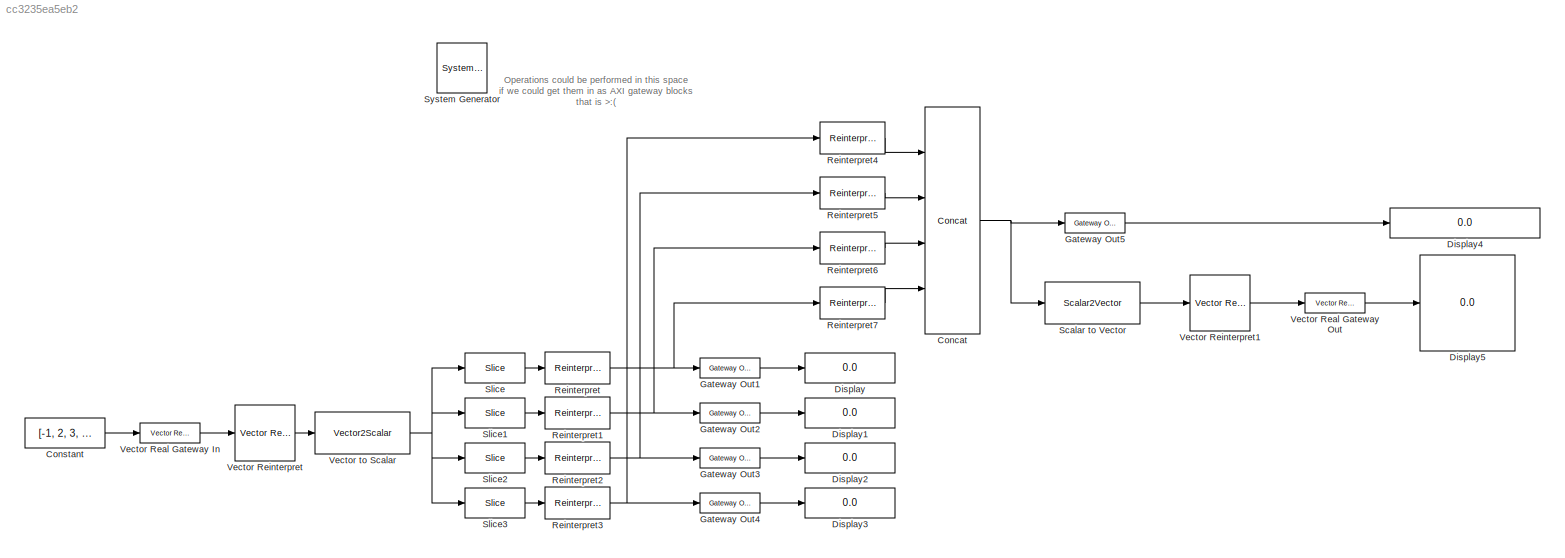
MODEL slx_cc3235ea5eb2
KIND model
CONFIG AbsTol = auto
CONFIG EnableMultiTasking = off
CONFIG FixedStep = auto
CONFIG MaxStep = auto
CONFIG MinStep = auto
CONFIG RelTol = 1e-3
CONFIG SampleTimeConstraint = Unconstrained
CONFIG SolverName = VariableStepAuto
CONFIG StartTime = 0.0
CONFIG StopTime = 10.0
BLOCK [Reference]  System Generator  REF=xbsIndex_r4/ System Generator
  AttributesFormatString = System\nGenerator
  Ports = []
  SourceBlock = xbsIndex_r4/ System Generator
  SourceType = Xilinx System Generator Block
  Tag = genX
  UserDataPersistent = on
BLOCK [Reference] Concat  REF=hdlBasic/Concat
  Ports = [4, 1]
  SourceBlock = hdlBasic/Concat
  SourceType = Bus Concatenator Block
BLOCK [Constant] Constant
  Value = [-1, 2, 3, 4]
BLOCK [Display] Display
  Decimation = 1
  Format = hex (Stored Integer)
  Ports = [1]
BLOCK [Display] Display1
  Decimation = 1
  Format = binary (Stored Integer)
  Ports = [1]
BLOCK [Display] Display2
  Decimation = 1
  Format = binary (Stored Integer)
  Ports = [1]
BLOCK [Display] Display3
  Decimation = 1
  Format = binary (Stored Integer)
  Ports = [1]
BLOCK [Display] Display4
  Decimation = 1
  Format = hex (Stored Integer)
  Ports = [1]
BLOCK [Display] Display5
  Decimation = 1
  Format = hex (Stored Integer)
  Ports = [1]
BLOCK [Reference] Gateway Out1  REF=hdlBasic/Gateway Out
  Ports = [1, 1]
  SourceBlock = hdlBasic/Gateway Out
  SourceType = Gateway Out Block
BLOCK [Reference] Gateway Out2  REF=hdlBasic/Gateway Out
  Ports = [1, 1]
  SourceBlock = hdlBasic/Gateway Out
  SourceType = Gateway Out Block
BLOCK [Reference] Gateway Out3  REF=hdlBasic/Gateway Out
  Ports = [1, 1]
  SourceBlock = hdlBasic/Gateway Out
  SourceType = Gateway Out Block
BLOCK [Reference] Gateway Out4  REF=hdlBasic/Gateway Out
  Ports = [1, 1]
  SourceBlock = hdlBasic/Gateway Out
  SourceType = Gateway Out Block
BLOCK [Reference] Gateway Out5  REF=hdlBasic/Gateway Out
  Ports = [1, 1]
  SourceBlock = hdlBasic/Gateway Out
  SourceType = Gateway Out Block
BLOCK [Reference] Reinterpret  REF=hdlBasic/Reinterpret
  Ports = [1, 1]
  SourceBlock = hdlBasic/Reinterpret
  SourceType = Type Reinterpreter Block
BLOCK [Reference] Reinterpret1  REF=hdlBasic/Reinterpret
  Ports = [1, 1]
  SourceBlock = hdlBasic/Reinterpret
  SourceType = Type Reinterpreter Block
BLOCK [Reference] Reinterpret2  REF=hdlBasic/Reinterpret
  Ports = [1, 1]
  SourceBlock = hdlBasic/Reinterpret
  SourceType = Type Reinterpreter Block
BLOCK [Reference] Reinterpret3  REF=hdlBasic/Reinterpret
  Ports = [1, 1]
  SourceBlock = hdlBasic/Reinterpret
  SourceType = Type Reinterpreter Block
BLOCK [Reference] Reinterpret4  REF=hdlBasic/Reinterpret
  Ports = [1, 1]
  SourceBlock = hdlBasic/Reinterpret
  SourceType = Type Reinterpreter Block
BLOCK [Reference] Reinterpret5  REF=hdlBasic/Reinterpret
  Ports = [1, 1]
  SourceBlock = hdlBasic/Reinterpret
  SourceType = Type Reinterpreter Block
BLOCK [Reference] Reinterpret6  REF=hdlBasic/Reinterpret
  Ports = [1, 1]
  SourceBlock = hdlBasic/Reinterpret
  SourceType = Type Reinterpreter Block
BLOCK [Reference] Reinterpret7  REF=hdlBasic/Reinterpret
  Ports = [1, 1]
  SourceBlock = hdlBasic/Reinterpret
  SourceType = Type Reinterpreter Block
BLOCK [Reference] Scalar to Vector  REF=hdlSSR/Scalar2Vector
  Ports = [1, 1]
  SourceBlock = hdlSSR/Scalar2Vector
  SourceType = Xilinx Scalar2Vector Block
BLOCK [Reference] Slice  REF=hdlBasic/Slice
  Ports = [1, 1]
  SourceBlock = hdlBasic/Slice
  SourceType = Bit Slice Extractor Block
BLOCK [Reference] Slice1  REF=hdlBasic/Slice
  Ports = [1, 1]
  SourceBlock = hdlBasic/Slice
  SourceType = Bit Slice Extractor Block
BLOCK [Reference] Slice2  REF=hdlBasic/Slice
  Ports = [1, 1]
  SourceBlock = hdlBasic/Slice
  SourceType = Bit Slice Extractor Block
BLOCK [Reference] Slice3  REF=hdlBasic/Slice
  Ports = [1, 1]
  SourceBlock = hdlBasic/Slice
  SourceType = Bit Slice Extractor Block
BLOCK [Reference] Vector Real Gateway In  REF=hdlSSR/Vector Real Gateway In
  Ports = [1, 1]
  SourceBlock = hdlSSR/Vector Real Gateway In
  SourceType = Xilinx Vector Gateway In Block
BLOCK [Reference] Vector Real Gateway Out  REF=hdlSSR/Vector Real Gateway Out
  Ports = [1, 1]
  SourceBlock = hdlSSR/Vector Real Gateway Out
  SourceType = Xilinx Vector Gateway Out Block
BLOCK [Reference] Vector Reinterpret  REF=hdlSSR/Vector Reinterpret
  Ports = [1, 1]
  SourceBlock = hdlSSR/Vector Reinterpret
  SourceType = Xilinx Vector Type Reinterpreter Block
BLOCK [Reference] Vector Reinterpret1  REF=hdlSSR/Vector Reinterpret
  Ports = [1, 1]
  SourceBlock = hdlSSR/Vector Reinterpret
  SourceType = Xilinx Vector Type Reinterpreter Block
BLOCK [Reference] Vector to Scalar  REF=hdlSSR/Vector2Scalar
  Ports = [1, 1]
  SourceBlock = hdlSSR/Vector2Scalar
  SourceType = Xilinx Vector2Scalar Block
ANNOTATION (root): Operations could be performed in this space if we could get them in as AXI gateway blocks that is >:(
NET Concat:1 -> Gateway Out5:1, Scalar to Vector:1
LINE Constant:1 -> Vector Real Gateway In:1
LINE Gateway Out1:1 -> Display:1
LINE Gateway Out2:1 -> Display1:1
LINE Gateway Out3:1 -> Display2:1
LINE Gateway Out4:1 -> Display3:1
LINE Gateway Out5:1 -> Display4:1
NET Reinterpret1:1 -> Gateway Out2:1, Reinterpret6:1
NET Reinterpret2:1 -> Gateway Out3:1, Reinterpret5:1
NET Reinterpret3:1 -> Gateway Out4:1, Reinterpret4:1
LINE Reinterpret4:1 -> Concat:1
LINE Reinterpret5:1 -> Concat:2
LINE Reinterpret6:1 -> Concat:3
LINE Reinterpret7:1 -> Concat:4
NET Reinterpret:1 -> Gateway Out1:1, Reinterpret7:1
LINE Scalar to Vector:1 -> Vector Reinterpret1:1
LINE Slice1:1 -> Reinterpret1:1
LINE Slice2:1 -> Reinterpret2:1
LINE Slice3:1 -> Reinterpret3:1
LINE Slice:1 -> Reinterpret:1
LINE Vector Real Gateway In:1 -> Vector Reinterpret:1
LINE Vector Real Gateway Out:1 -> Display5:1
LINE Vector Reinterpret1:1 -> Vector Real Gateway Out:1
LINE Vector Reinterpret:1 -> Vector to Scalar:1
NET Vector to Scalar:1 -> Slice1:1, Slice2:1, Slice3:1, Slice:1
note: NET lines group one-source signal fan-out (src -> all destinations, sorted); 1:1 wires keep LINE
